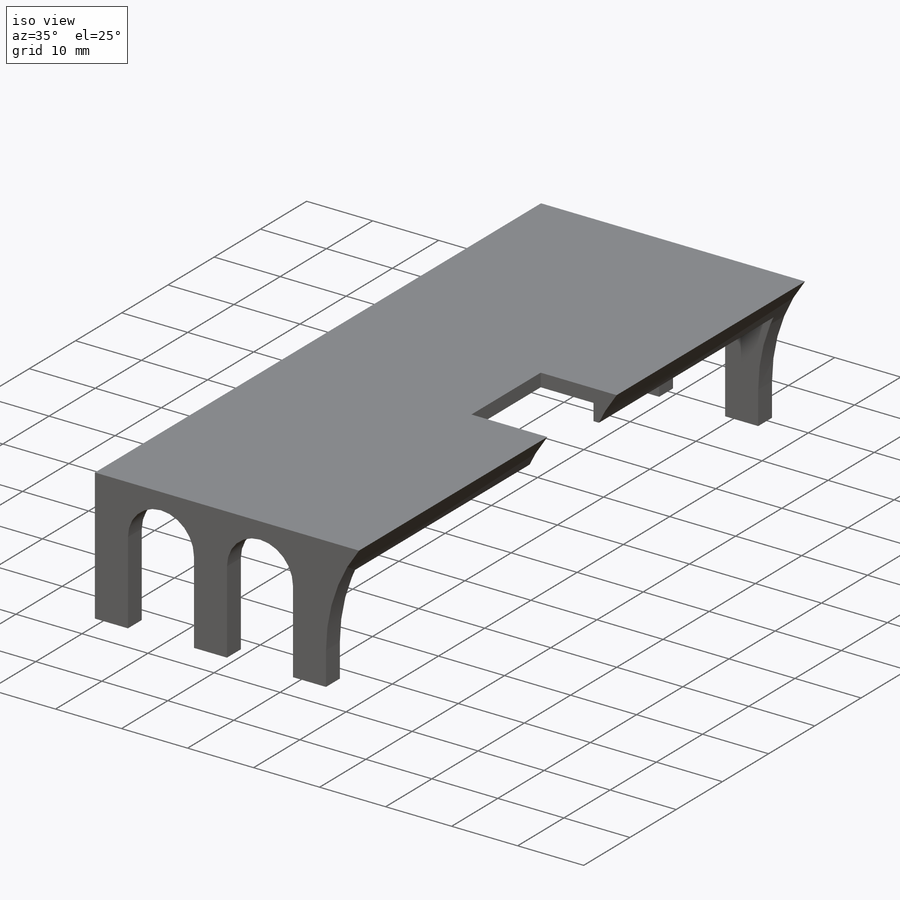
[diagram: iso view]
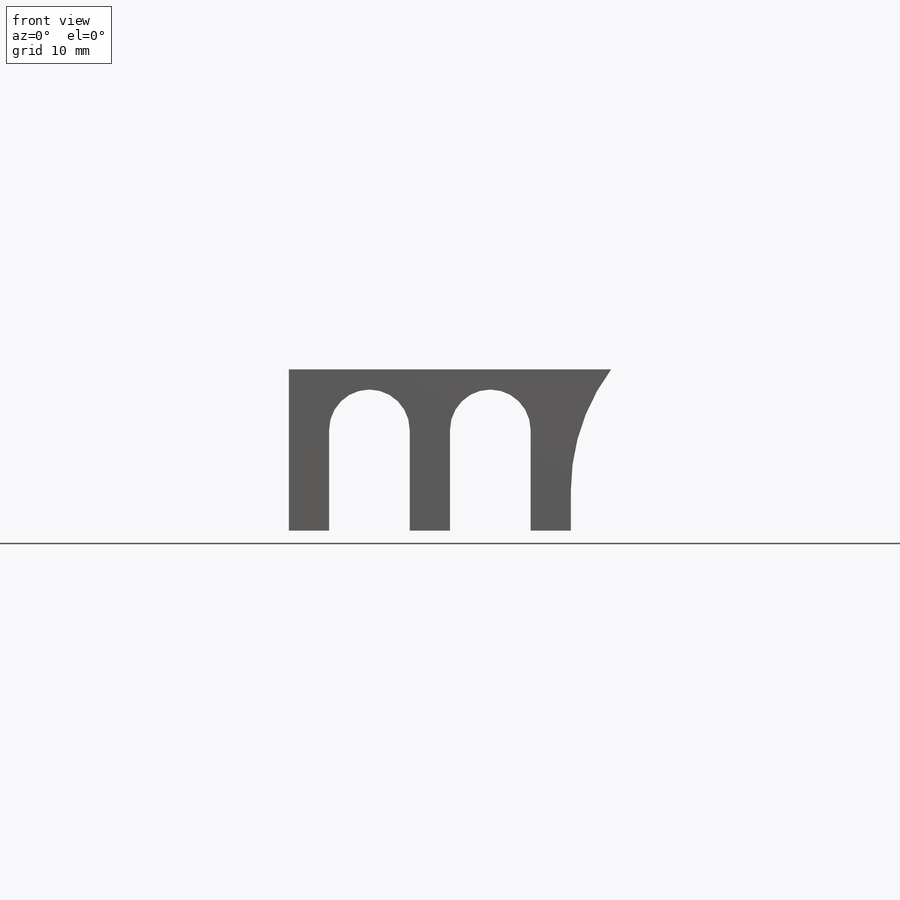
[diagram: front view]
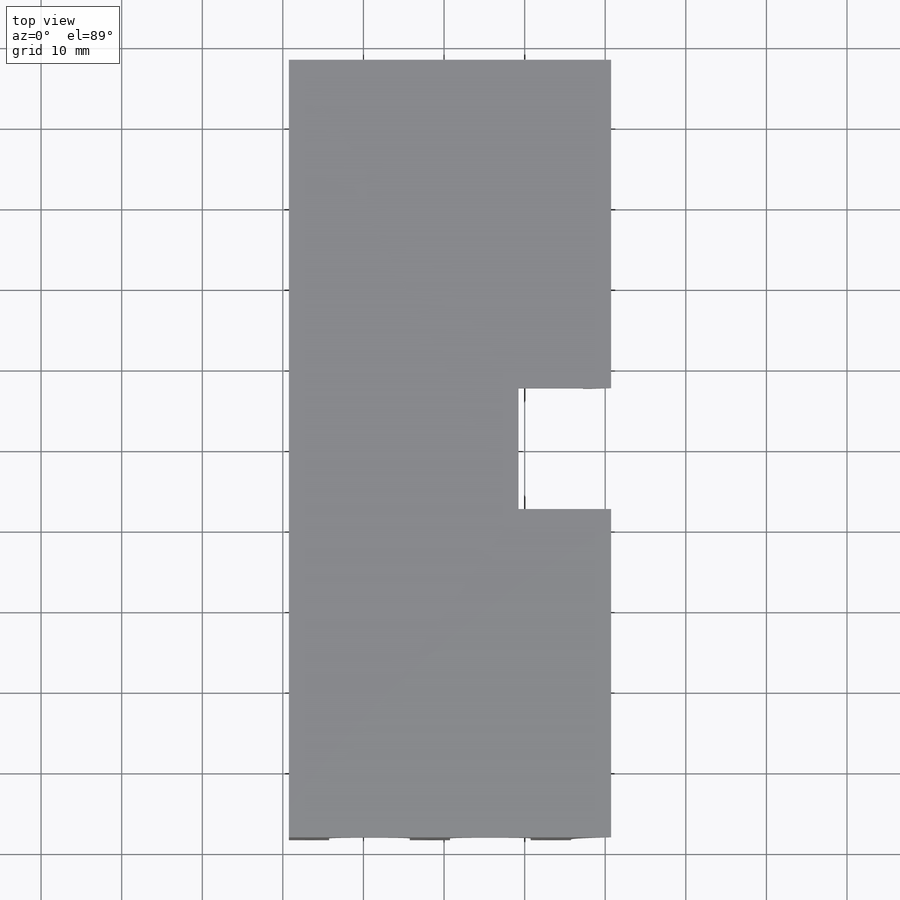
[diagram: top view]
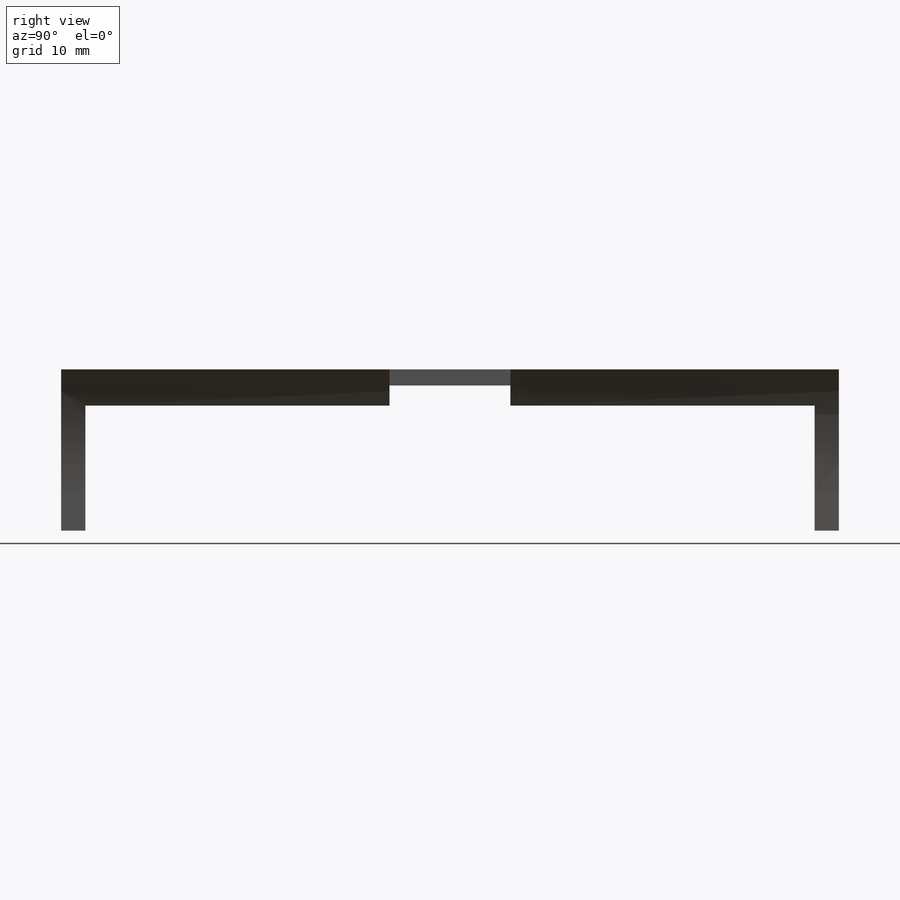
[diagram: right view]
SOLIDWORKS PART (.sldprt)
format: sldprt  version: not decoded by parser v0  size: 295,936 bytes
history: native  units: mm
features: sketch x6, cut_extrude x5, material x1, extrude x1, fillet x1 (+11 scaffold rows collapsed)
feature tree (25):
  scaffold x11  (default folders/planes/origin — collapsed)
  material  "PTFE (general)"
  sketch  "Sketch8"  dims[c1.D5=2.75mm c1.D1=0.0mm c1.D2=3.0mm c1.D3=0.0mm c1.D4=42.0mm c2.D1=2.0mm c2.D3=0.0mm c2.D4=2.0mm c3.D1=2.5mm c3.D2=20.0mm c3.D3=42.5mm c4.D1=40.0mm c4.D2=20.0mm]
  extrude  "Boss-Extrude1"  Depth=96.5mm
  sketch  "Sketch10"  dims[c1.D1=2.0mm c1.D2=2.0mm c1.D3=1.0mm c2.D1=3.0mm c2.D2=3.0mm c2.D3=3.0mm c2.D4=90.5mm c3.D3=36.5mm]
  cut_extrude  "Cut-Extrude6"  Depth=18mm
  sketch  "Sketch12"  dims[D1=3.0mm D2=4.5mm D3=3.0mm]
  cut_extrude  "Cut-Extrude9"  Depth=28mm
  sketch  "Sketch13"  dims[c1.D1=~5.938571mm c1.D4=~1.631061mm c1.D3=~1.67302mm c1.D2=4.5mm c2.D2=25.0mm c2.D1=2.5mm c3.D2=2.0mm c3.D1=8.0mm c4.D2=~2.517691mm c4.D1=1.0mm c5.D2=2.5mm c5.D3=4.5mm c5.D4=0.0mm c6.D2=2.5mm c6.D3=3.0mm c6.D4=0.5mm c7.D2=3.0mm c7.D3=5.0mm c8.D2=1.5mm c8.D1=0.0mm]
  cut_extrude  "Cut-Extrude10"  [1 undecoded]
  sketch  "Sketch14"
  cut_extrude  "Cut-Extrude11"  Depth=10mm
  fillet  "Fillet6"  Radius=2.5mm
  sketch  "Sketch15"  dims[c1.D6=2.5mm c1.D7=2.5mm c1.D5=5.0mm c2.D6=5.0mm c2.D1=10.0mm c2.D2=5.0mm c2.D3=5.0mm c2.D4=7.5mm c2.D5=5.0mm c3.D2=5.0mm c3.D3=5.0mm c3.D7=5.0mm c3.D1=10.0mm c4.D2=5.0mm c4.D3=5.0mm c4.D1=10.0mm c4.D4=10.0mm c4.D7=7.5mm]
  cut_extrude  "Cut-Extrude12"  [1 undecoded]
decode coverage: 10 of 13 modeling features carry decoded parameters
note: ~ marks probable driven/reference dimensions
note: 2 parameter values undecoded
note: suppression state not decoded; provenance and decode notes live in map.json
